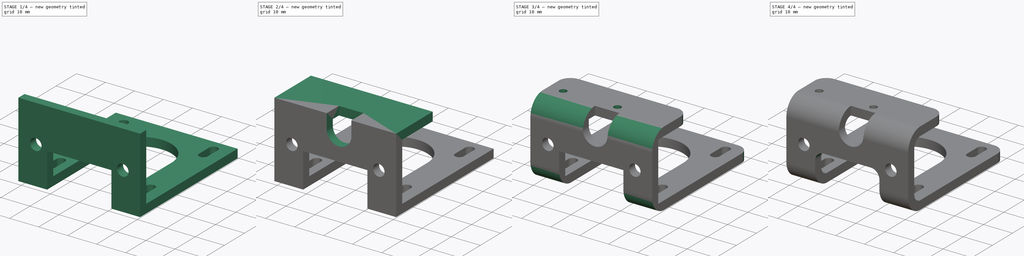
[diagram: build sequence overview — one tinted view per stage of 4, left to right]
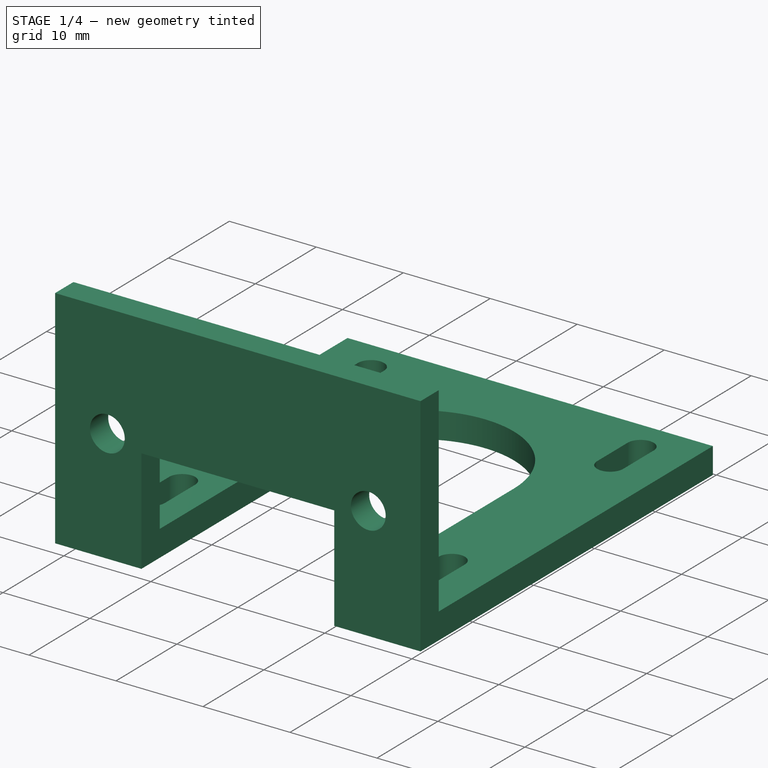
[diagram: stage 1 of 4 — iso view after this stage's code; geometry added in this stage tinted green]
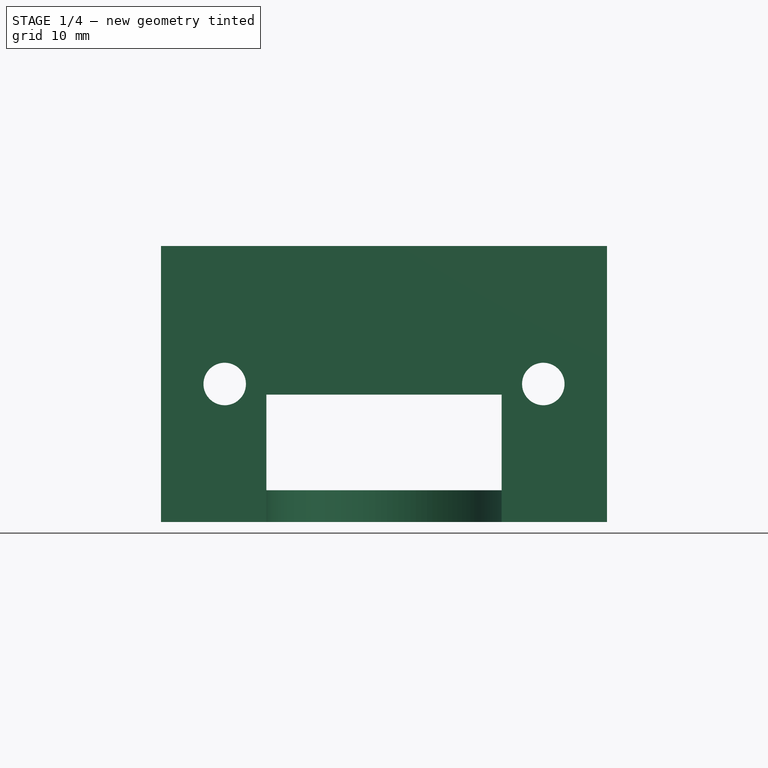
[diagram: stage 1 of 4 — front view after this stage's code; geometry added in this stage tinted green]
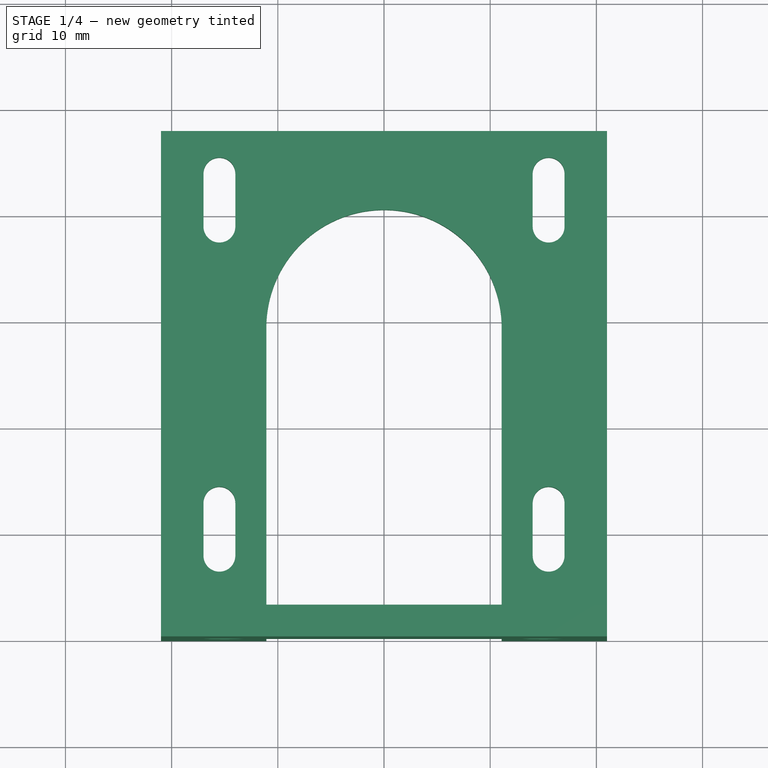
[diagram: stage 1 of 4 — top view after this stage's code; geometry added in this stage tinted green]
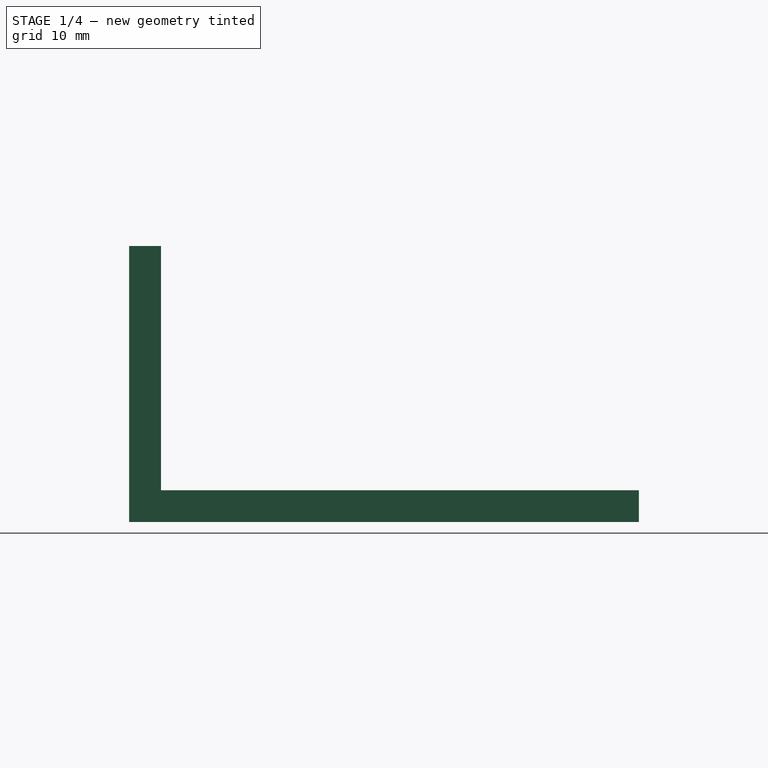
[diagram: stage 1 of 4 — right view after this stage's code; geometry added in this stage tinted green]
FCSTD DOCUMENT  (FreeCAD 0.14R3310 (Git))
Label: 67. SOPORTE MOTOR X V04
License: CC-BY 3.0
LicenseURL: http://creativecommons.org/licenses/by/3.0/
objects: Sketcher::SketchObject×5, PartDesign::Fillet×4, PartDesign::Pad×3, PartDesign::Pocket×2
note: 19 computed .brp shape members not serialized (recipe doc carries the construction recipe); baked Part::Feature solids carry a one-line shape summary decoded from their .brp

FEATURE [Sketcher::SketchObject] Sketch
  sketch-geometry (24):
    g0: LineSegment StartX=21 StartY=0 StartZ=0 EndX=21 EndY=48 EndZ=0
    g1: LineSegment StartX=21 StartY=48 StartZ=0 EndX=-21 EndY=48 EndZ=0
    g2: LineSegment StartX=-21 StartY=48 StartZ=0 EndX=-21 EndY=0 EndZ=0
    g3: LineSegment StartX=-21 StartY=0 StartZ=0 EndX=-11.08 EndY=0 EndZ=0
    g4: LineSegment StartX=-11.08 StartY=0 StartZ=0 EndX=-11.08 EndY=29.5 EndZ=0
    g5: LineSegment StartX=21 StartY=0 StartZ=0 EndX=11.08 EndY=0 EndZ=0
    g6: LineSegment StartX=11.08 StartY=0 StartZ=0 EndX=11.08 EndY=29.5 EndZ=0
    g7: ArcOfCircle CenterX=0 CenterY=29.5 CenterZ=0 NormalX=0 NormalY=0 NormalZ=1 Radius=11.08 StartAngle=6.28319 EndAngle=9.42478
    g8: LineSegment StartX=14 StartY=13 StartZ=0 EndX=14 EndY=8 EndZ=0
    g9: LineSegment StartX=17 StartY=13 StartZ=0 EndX=17 EndY=8 EndZ=0
    g10: ArcOfCircle CenterX=15.5 CenterY=13 CenterZ=0 NormalX=0 NormalY=0 NormalZ=1 Radius=1.5 StartAngle=6.28319 EndAngle=9.42478
    g11: ArcOfCircle CenterX=15.5 CenterY=8 CenterZ=0 NormalX=0 NormalY=0 NormalZ=1 Radius=1.5 StartAngle=3.14159 EndAngle=6.28319
    g12: LineSegment StartX=-14 StartY=8 StartZ=0 EndX=-14 EndY=13 EndZ=0
    g13: LineSegment StartX=-17 StartY=8 StartZ=0 EndX=-17 EndY=13 EndZ=0
    g14: ArcOfCircle CenterX=-15.5 CenterY=13 CenterZ=0 NormalX=0 NormalY=0 NormalZ=1 Radius=1.5 StartAngle=8.8712e-08 EndAngle=3.14159
    g15: ArcOfCircle CenterX=-15.5 CenterY=8 CenterZ=0 NormalX=0 NormalY=0 NormalZ=1 Radius=1.5 StartAngle=3.14159 EndAngle=6.28319
    g16: LineSegment StartX=-17 StartY=44 StartZ=0 EndX=-17 EndY=39 EndZ=0
    g17: LineSegment StartX=-14 StartY=44 StartZ=0 EndX=-14 EndY=39 EndZ=0
    g18: ArcOfCircle CenterX=-15.5 CenterY=44 CenterZ=0 NormalX=0 NormalY=0 NormalZ=1 Radius=1.5 StartAngle=6.10431e-07 EndAngle=3.14159
    g19: ArcOfCircle CenterX=-15.5 CenterY=39 CenterZ=0 NormalX=0 NormalY=0 NormalZ=1 Radius=1.5 StartAngle=3.14159 EndAngle=6.28318
    g20: LineSegment StartX=17 StartY=44 StartZ=0 EndX=17 EndY=39 EndZ=0
    g21: LineSegment StartX=14 StartY=44 StartZ=0 EndX=14 EndY=39 EndZ=0
    g22: ArcOfCircle CenterX=15.5 CenterY=44 CenterZ=0 NormalX=0 NormalY=0 NormalZ=1 Radius=1.5 StartAngle=6.28319 EndAngle=9.42478
    g23: ArcOfCircle CenterX=15.5 CenterY=39 CenterZ=0 NormalX=0 NormalY=0 NormalZ=1 Radius=1.5 StartAngle=3.14159 EndAngle=6.28319
  constraints (78):
    c: PointOnObject(g0,g-1)
    c: Vertical(g0)
    c: Coincident(g0,g1)
    c: Horizontal(g1)
    c: Coincident(g1,g2)
    c: PointOnObject(g2,g-1)
    c: Vertical(g2)
    c: Coincident(g2,g3)
    c: Horizontal(g3)
    c: Coincident(g3,g4)
    c: Vertical(g4)
    c: Coincident(g0,g5)
    c: PointOnObject(g5,g-1)
    c: Coincident(g5,g6)
    c: Vertical(g6)
    c: Symmetric(g6,g4,g-2)
    c: Coincident(g7,g4)
    c: Coincident(g7,g6)
    c: Radius(g7) = 11.08
    c: Distance(g6) = 29.5
    c: Tangent(g7,g6)
    c: Symmetric(g2,g0,g-2)
    c: Distance(g1) = 42
    c: Distance(g0) = 48
    c: Vertical(g8)
    c: Vertical(g9)
    c: Coincident(g10,g8)
    c: Coincident(g10,g9)
    c: Tangent(g10,g9)
    c: Tangent(g10,g8)
    c: Coincident(g11,g8)
    c: Coincident(g11,g9)
    c: Tangent(g9,g11)
    c: Tangent(g8,g11)
    c: Distance(g10,g11) = 5
    c: Radius(g10) = 1.5
    c: Distance(g11,g5) = 8
    c: Distance(g9,g0) = 4
    c: Vertical(g12)
    c: Vertical(g13)
    c: Coincident(g14,g13)
    c: Coincident(g14,g12)
    c: Coincident(g15,g13)
    c: Coincident(g15,g12)
    c: Tangent(g14,g13)
    c: Tangent(g15,g13)
    c: Tangent(g12,g15)
    c: Tangent(g14,g12)
    c: Symmetric(g14,g10,g-2)
    c: Symmetric(g11,g15,g-2)
    c: Equal(g14,g10)
    c: Vertical(g16)
    c: Vertical(g17)
    c: Coincident(g18,g16)
    c: Coincident(g18,g17)
    c: Coincident(g19,g16)
    c: Coincident(g19,g17)
    c: Tangent(g17,g19)
    c: Tangent(g17,g18)
    c: Tangent(g16,g18)
    c: Tangent(g19,g16)
    c: Equal(g18,g14)
    c: Equal(g17,g12)
    c: Distance(g19,g14) = 26
    c: Distance(g16,g2) = 4
    c: Vertical(g20)
    c: Vertical(g21)
    c: Coincident(g22,g21)
    c: Coincident(g22,g20)
    c: Coincident(g23,g21)
    c: Coincident(g23,g20)
    c: Tangent(g20,g23)
    c: Tangent(g23,g21)
    c: Tangent(g22,g21)
    c: Tangent(g22,g20)
    c: Symmetric(g22,g18,g-2)
    c: Equal(g21,g17)
    c: Equal(g23,g19)
FEATURE [PartDesign::Pad] Pad
  Length = 3
  Length2 = 100
  Sketch = -> Sketch
  Type = 0
FEATURE [Sketcher::SketchObject] Sketch001
  ExternalGeometry = -> [Pad]
  Placement = pos=(0,0,0) rot=(1,0,0;1.5708rad)
  Support = -> Pad [Face1]
  sketch-geometry (10):
    g0: LineSegment StartX=-11.08 StartY=0 StartZ=0 EndX=-11.08 EndY=12 EndZ=0
    g1: LineSegment StartX=-11.08 StartY=12 StartZ=0 EndX=11.08 EndY=12 EndZ=0
    g2: LineSegment StartX=11.08 StartY=12 StartZ=0 EndX=11.08 EndY=0 EndZ=0
    g3: LineSegment StartX=-11.08 StartY=0 StartZ=0 EndX=-21 EndY=0 EndZ=0
    g4: LineSegment StartX=-21 StartY=0 StartZ=0 EndX=-21 EndY=26 EndZ=0
    g5: LineSegment StartX=-21 StartY=26 StartZ=0 EndX=21 EndY=26 EndZ=0
    g6: LineSegment StartX=21 StartY=26 StartZ=0 EndX=21 EndY=0 EndZ=0
    g7: LineSegment StartX=21 StartY=0 StartZ=0 EndX=11.08 EndY=0 EndZ=0
    g8: Circle CenterX=-15 CenterY=13 CenterZ=0 NormalX=0 NormalY=0 NormalZ=1 Radius=2
    g9: Circle CenterX=15 CenterY=13 CenterZ=0 NormalX=0 NormalY=0 NormalZ=1 Radius=2
  constraints (25):
    c: Coincident(g-3,g0)
    c: Vertical(g0)
    c: Coincident(g0,g1)
    c: Horizontal(g1)
    c: Coincident(g1,g2)
    c: Coincident(g2,g-5)
    c: Vertical(g2)
    c: Coincident(g0,g3)
    c: Coincident(g3,g-4)
    c: Coincident(g3,g4)
    c: Vertical(g4)
    c: Coincident(g4,g5)
    c: Horizontal(g5)
    c: Coincident(g5,g6)
    c: Coincident(g6,g-6)
    c: Coincident(g6,g7)
    c: Coincident(g7,g2)
    c: Vertical(g6)
    c: Distance(g0) = 12
    c: Distance(g4) = 26
    c: Symmetric(g8,g9,g-2)
    c: Equal(g8,g9)
    c: Distance(g9,g8) = 30
    c: DistanceY(g-1,g8) = 13
    c: Radius(g8) = 2
FEATURE [PartDesign::Pad] Pad001
  Length = 3
  Length2 = 100
  Reversed = true
  Sketch = -> Sketch001
  Type = 0
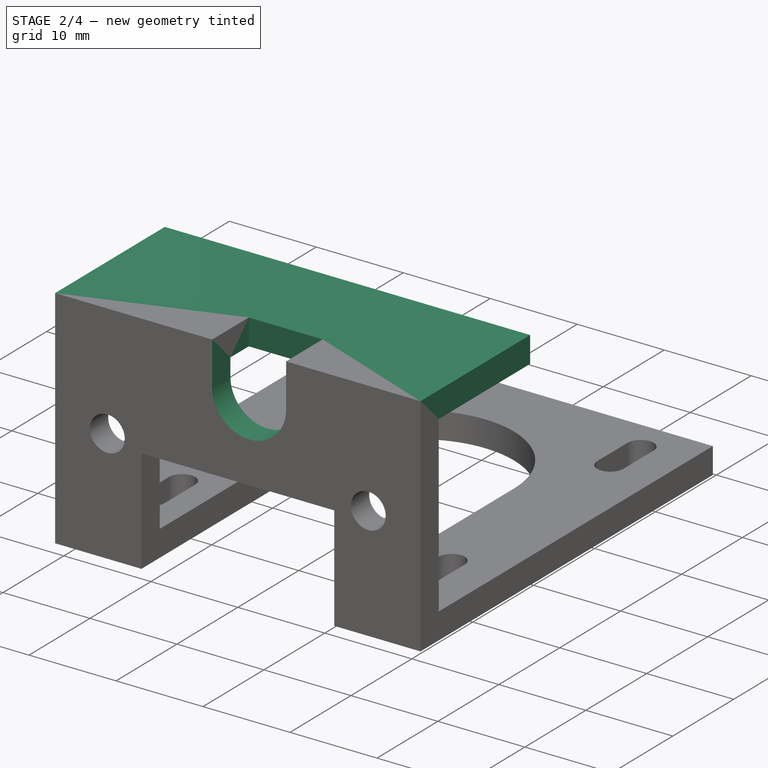
[diagram: stage 2 of 4 — iso view after this stage's code; geometry added in this stage tinted green]
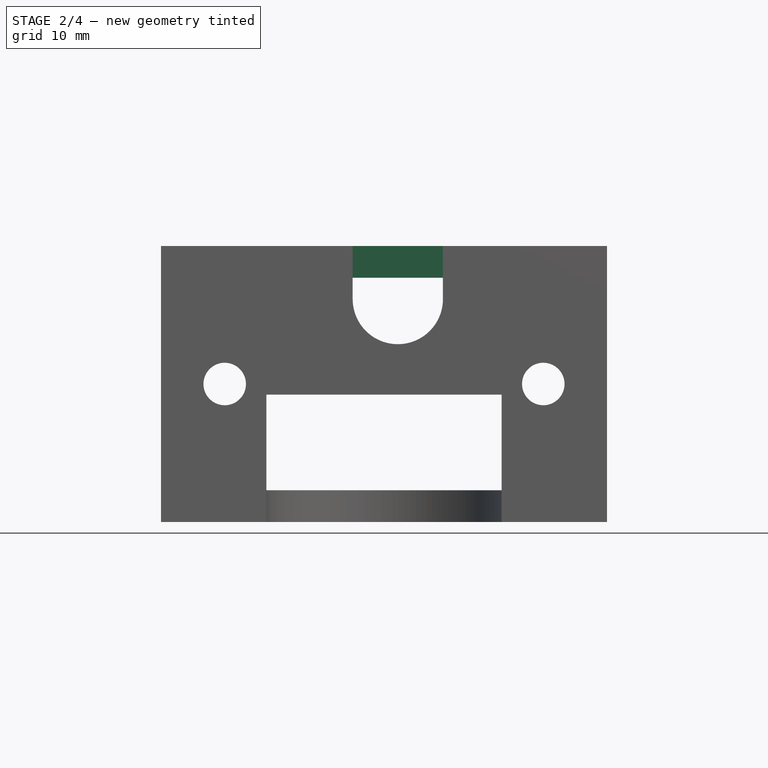
[diagram: stage 2 of 4 — front view after this stage's code; geometry added in this stage tinted green]
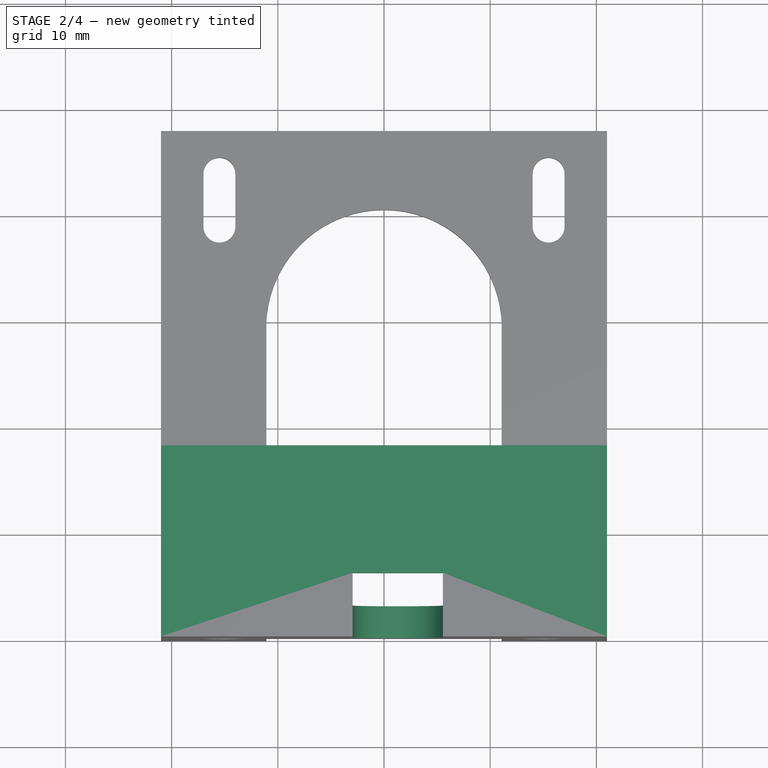
[diagram: stage 2 of 4 — top view after this stage's code; geometry added in this stage tinted green]
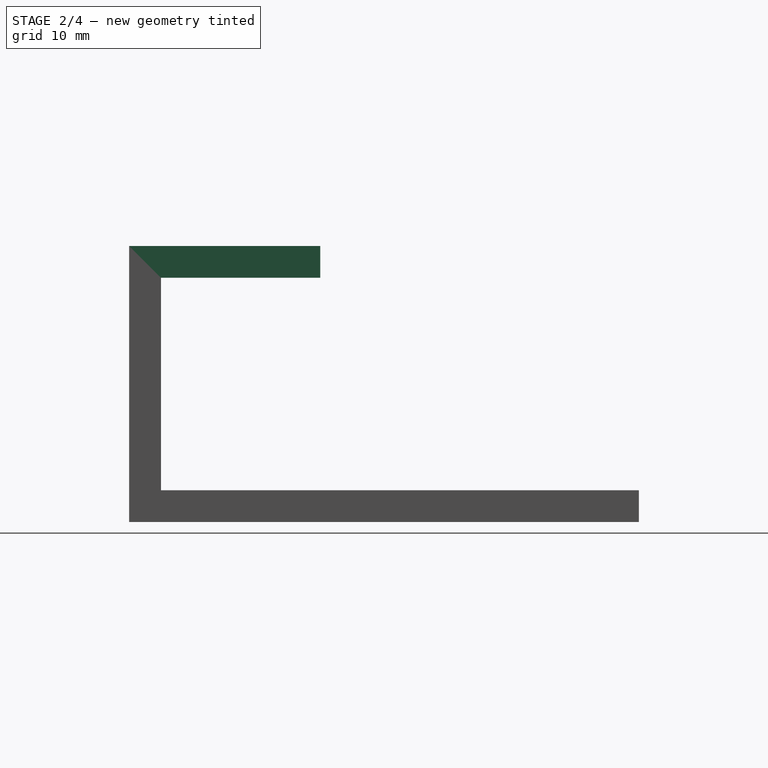
[diagram: stage 2 of 4 — right view after this stage's code; geometry added in this stage tinted green]
FEATURE [Sketcher::SketchObject] Sketch002
  ExternalGeometry = -> [Pad001]
  Placement = pos=(0,0,26) rot=(0,0,1;0rad)
  Support = -> Pad001 [Face21]
  sketch-geometry (4):
    g0: LineSegment StartX=21 StartY=0 StartZ=0 EndX=-21 EndY=0 EndZ=0
    g1: LineSegment StartX=-21 StartY=0 StartZ=0 EndX=-21 EndY=18 EndZ=0
    g2: LineSegment StartX=-21 StartY=18 StartZ=0 EndX=21 EndY=18 EndZ=0
    g3: LineSegment StartX=21 StartY=18 StartZ=0 EndX=21 EndY=0 EndZ=0
  constraints (11):
    c: Coincident(g0,g1)
    c: Coincident(g1,g2)
    c: Coincident(g2,g3)
    c: Coincident(g3,g0)
    c: Horizontal(g0)
    c: Horizontal(g2)
    c: Vertical(g1)
    c: Vertical(g3)
    c: Coincident(g0,g-3)
    c: Coincident(g0,g-4)
    c: Distance(g1) = 18
FEATURE [PartDesign::Pad] Pad002
  Length = 3
  Length2 = 100
  Reversed = true
  Sketch = -> Sketch002
  Type = 0
FEATURE [Sketcher::SketchObject] Sketch003
  ExternalGeometry = -> [Pad002]
  Placement = pos=(0,0,0) rot=(1,0,0;1.5708rad)
  Support = -> Pad002 [Face29]
  sketch-geometry (4):
    g0: LineSegment StartX=-2.95 StartY=26 StartZ=0 EndX=-2.95 EndY=21 EndZ=0
    g1: LineSegment StartX=5.55 StartY=26 StartZ=0 EndX=5.55 EndY=21 EndZ=0
    g2: ArcOfCircle CenterX=1.3 CenterY=21 CenterZ=0 NormalX=0 NormalY=0 NormalZ=1 Radius=4.25 StartAngle=3.14159 EndAngle=6.28319
    g3: LineSegment StartX=-2.95 StartY=26 StartZ=0 EndX=5.55 EndY=26 EndZ=0
  constraints (13):
    c: PointOnObject(g0,g-3)
    c: PointOnObject(g1,g-3)
    c: Vertical(g1)
    c: Distance(g1,g0) = 8.5
    c: Distance(g0) = 5
    c: Vertical(g0)
    c: Coincident(g2,g0)
    c: Coincident(g2,g1)
    c: Tangent(g1,g2)
    c: Tangent(g2,g0)
    c: DistanceX(g-2,g2) = 1.3
    c: Coincident(g3,g0)
    c: Coincident(g3,g1)
FEATURE [PartDesign::Pocket] Pocket
  Length = 6
  Sketch = -> Sketch003
  Type = 0
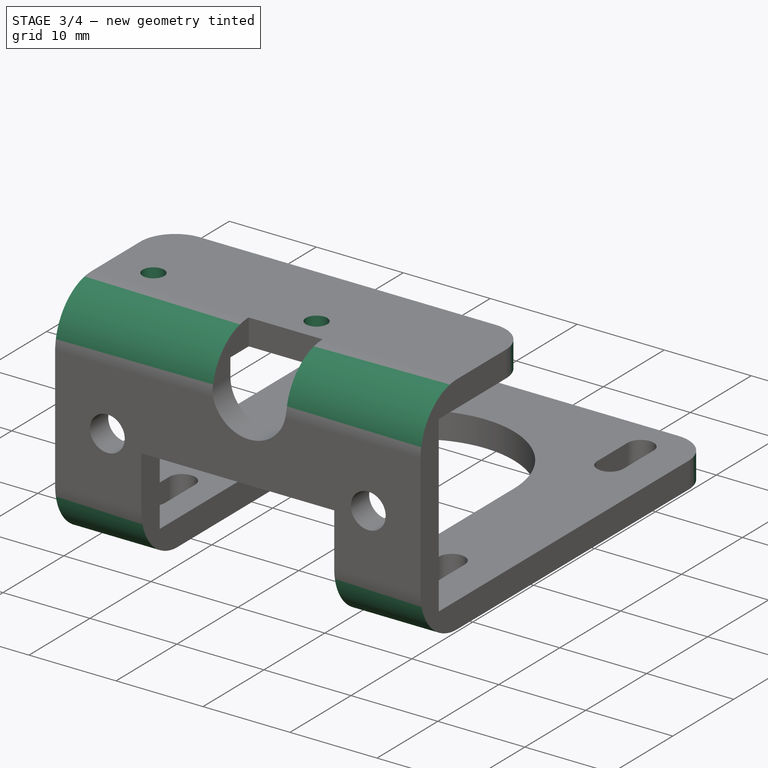
[diagram: stage 3 of 4 — iso view after this stage's code; geometry added in this stage tinted green]
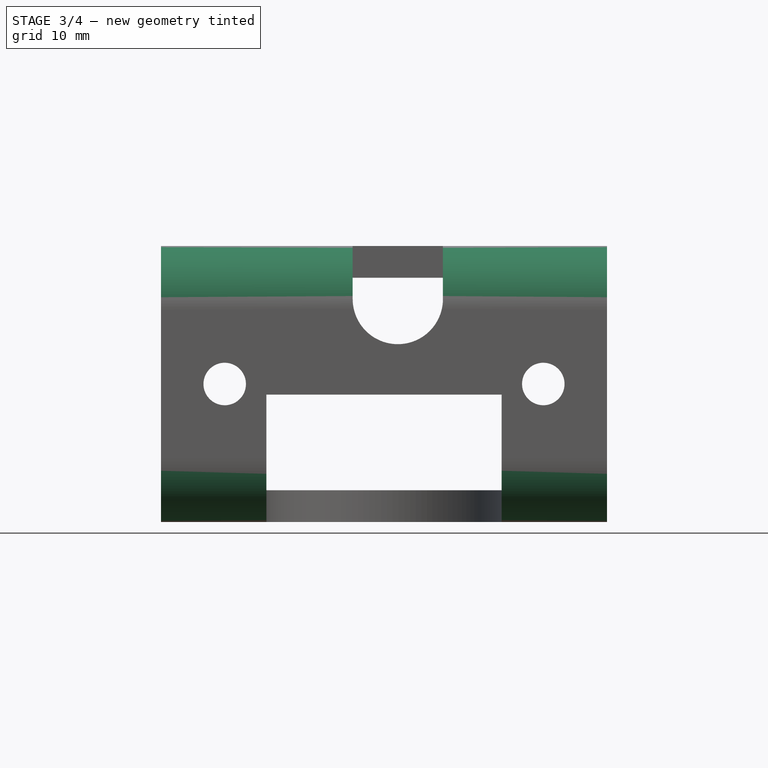
[diagram: stage 3 of 4 — front view after this stage's code; geometry added in this stage tinted green]
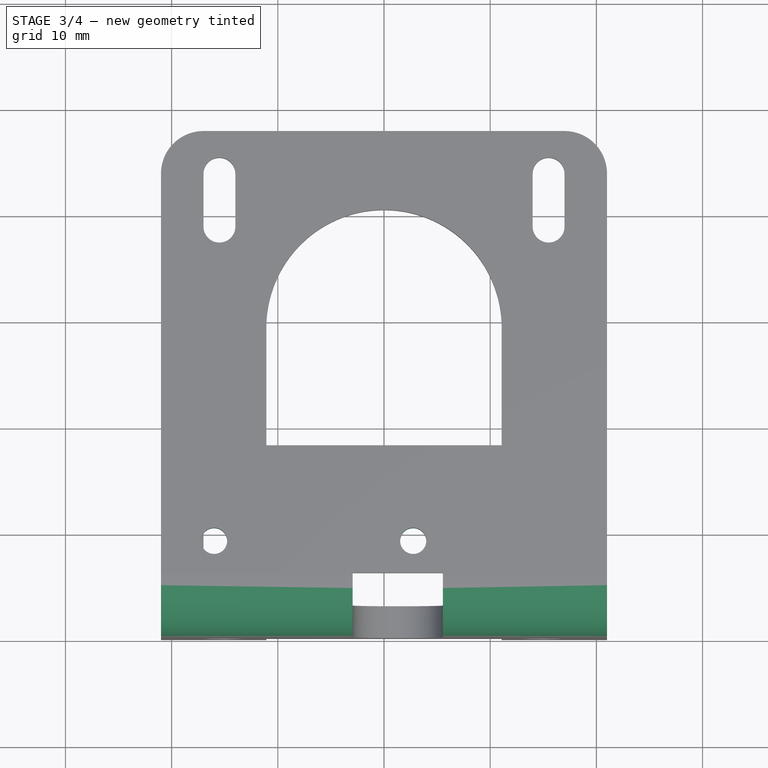
[diagram: stage 3 of 4 — top view after this stage's code; geometry added in this stage tinted green]
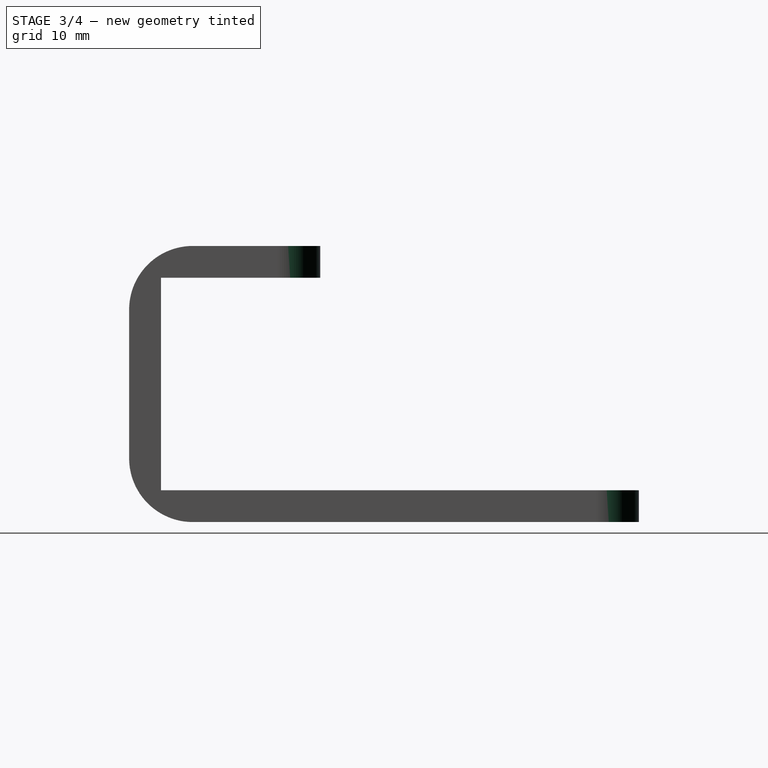
[diagram: stage 3 of 4 — right view after this stage's code; geometry added in this stage tinted green]
FEATURE [Sketcher::SketchObject] Sketch004
  ExternalGeometry = -> [Pocket]
  Placement = pos=(0,0,26) rot=(0,0,1;0rad)
  Support = -> Pocket [Face28]
  sketch-geometry (2):
    g0: Circle CenterX=-16 CenterY=9 CenterZ=0 NormalX=0 NormalY=0 NormalZ=1 Radius=1.23
    g1: Circle CenterX=2.75 CenterY=9 CenterZ=0 NormalX=0 NormalY=0 NormalZ=1 Radius=1.23
  constraints (6):
    c: Equal(g1,g0)
    c: DistanceY(g-1,g0) = 9
    c: Radius(g0) = 1.23
    c: DistanceY(g-1,g1) = 9
    c: Distance(g1,g0) = 18.75
    c: Distance(g0,g-3) = 5
FEATURE [PartDesign::Pocket] Pocket001
  Length = 5
  Sketch = -> Sketch004
  Type = 0
FEATURE [PartDesign::Fillet] Fillet
  Base = -> Pocket001 [Edge78,Edge83,Edge81,Edge80]
  Radius = 4
FEATURE [PartDesign::Fillet] Fillet001
  Base = -> Fillet [Edge10,Edge3,Edge40,Edge44]
  Radius = 6
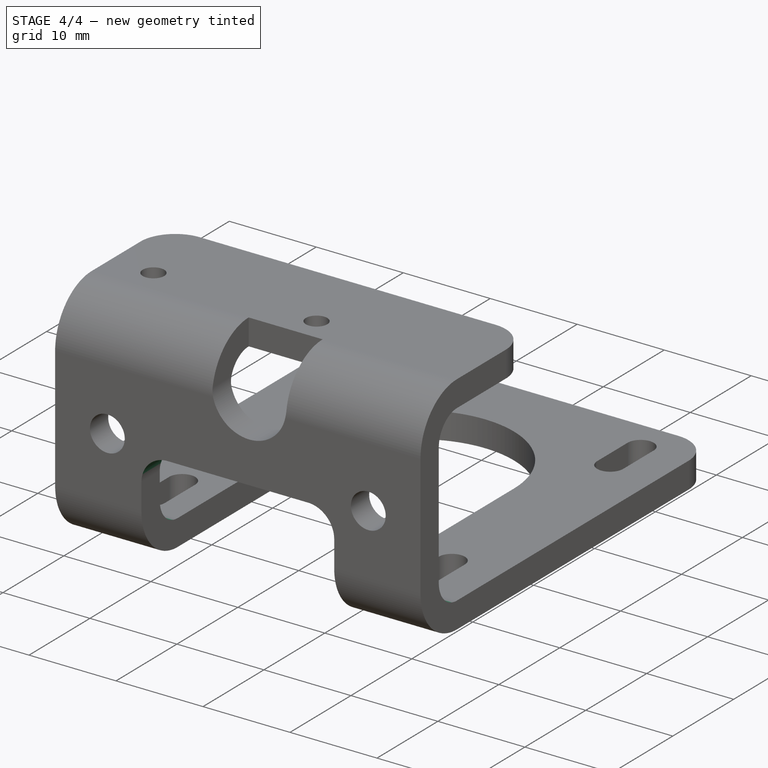
[diagram: stage 4 of 4 — iso view after this stage's code; geometry added in this stage tinted green]
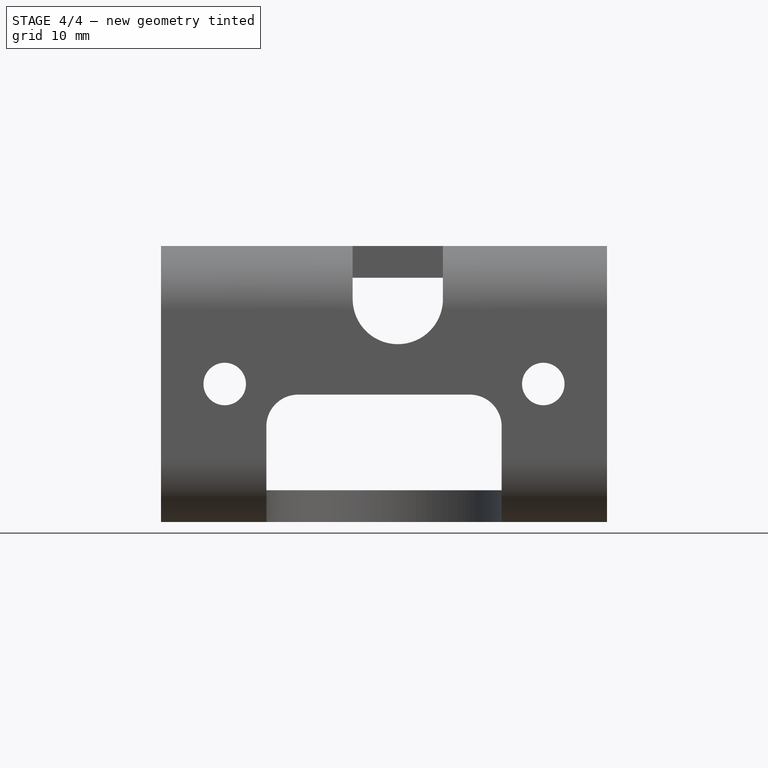
[diagram: stage 4 of 4 — front view after this stage's code; geometry added in this stage tinted green]
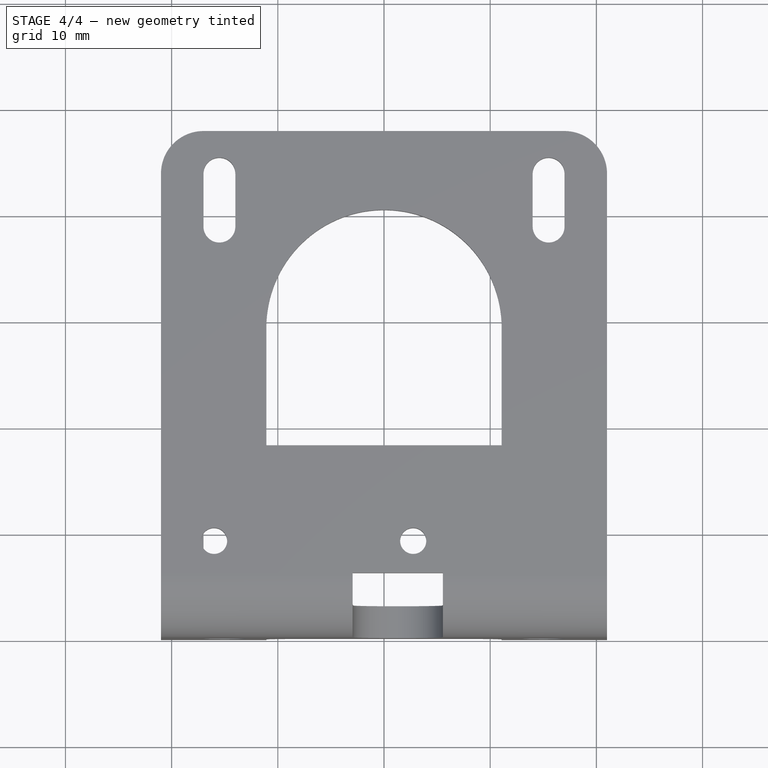
[diagram: stage 4 of 4 — top view after this stage's code; geometry added in this stage tinted green]
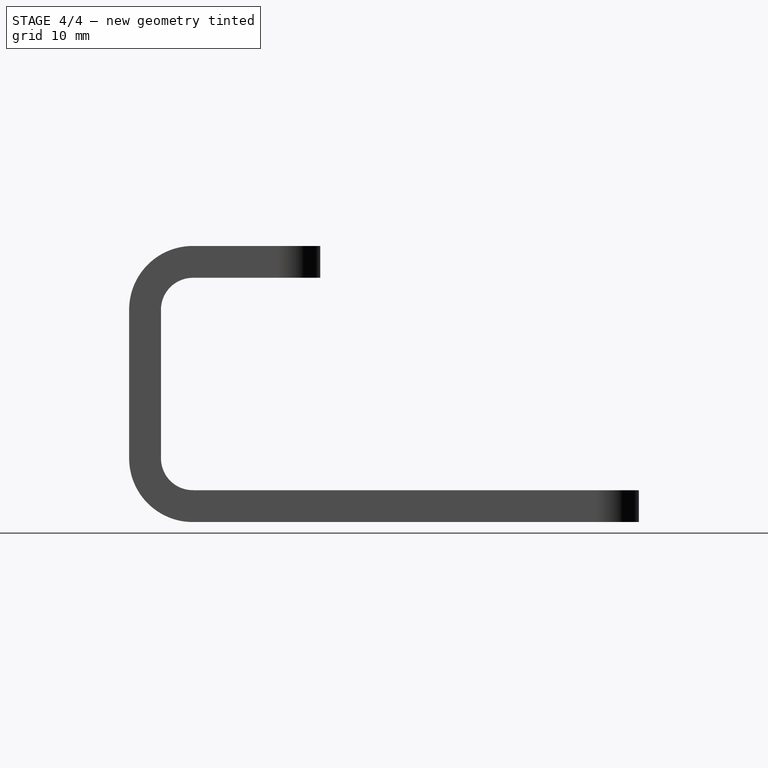
[diagram: stage 4 of 4 — right view after this stage's code; geometry added in this stage tinted green]
FEATURE [PartDesign::Fillet] Fillet002
  Base = -> Fillet001 [Edge104,Edge103,Edge108,Edge112]
  Radius = 3
FEATURE [PartDesign::Fillet] Fillet003
  Base = -> Fillet002 [Edge117,Edge111]
  Radius = 3
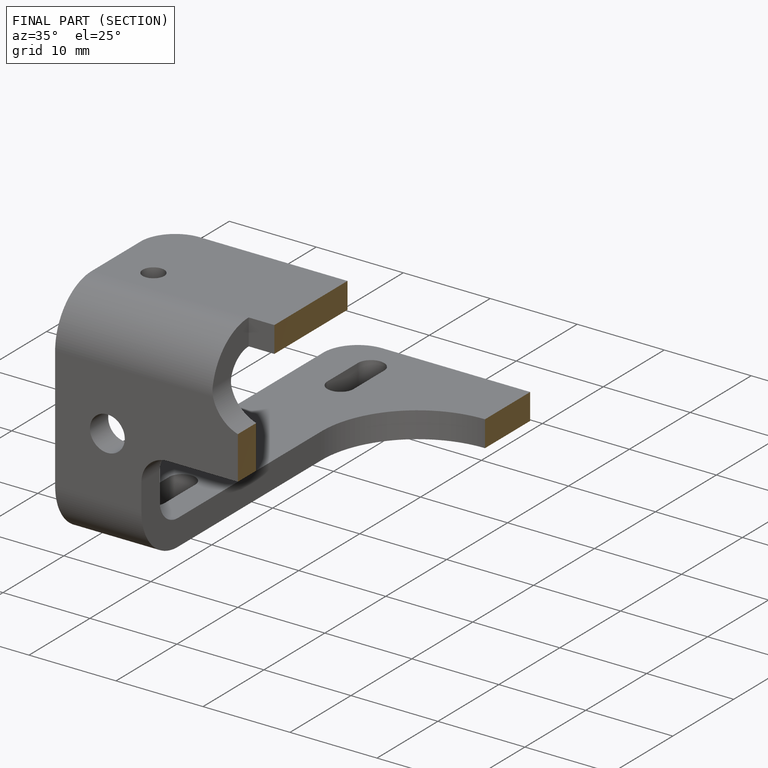
[diagram: finished part — half-section view (interior)]
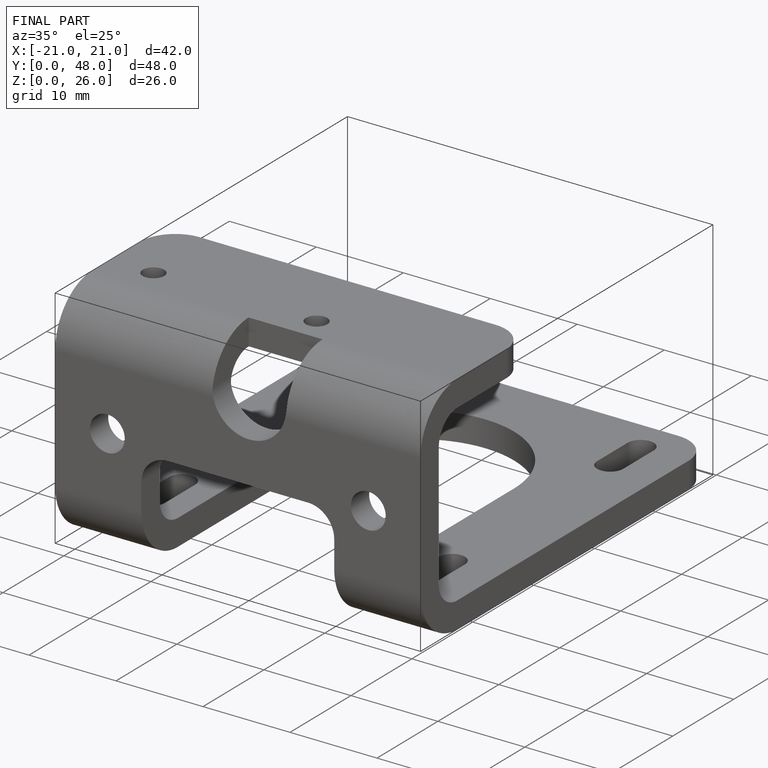
[diagram: finished part — iso view with bounding-box wireframe]
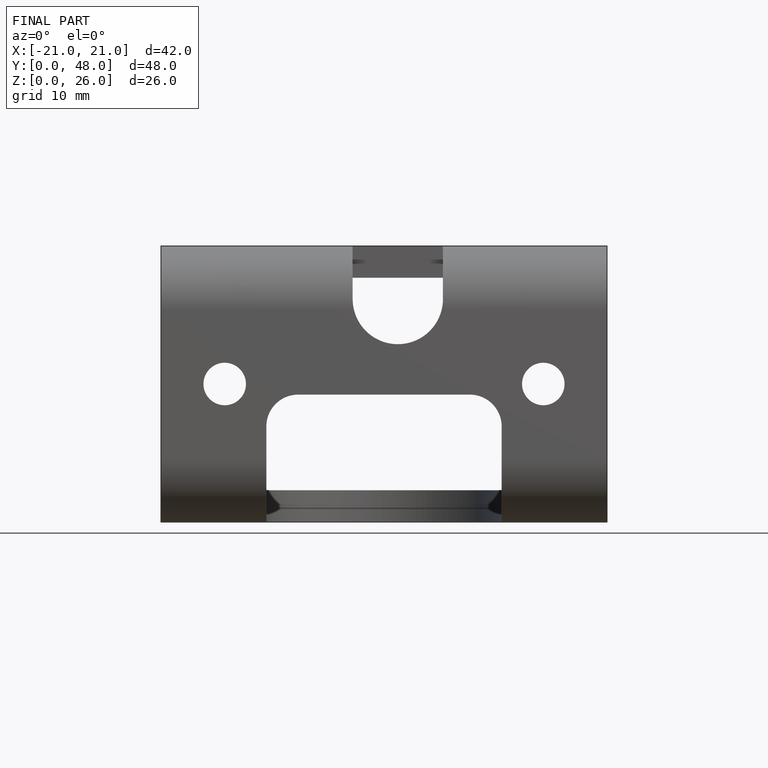
[diagram: finished part — front view with bounding-box wireframe]
